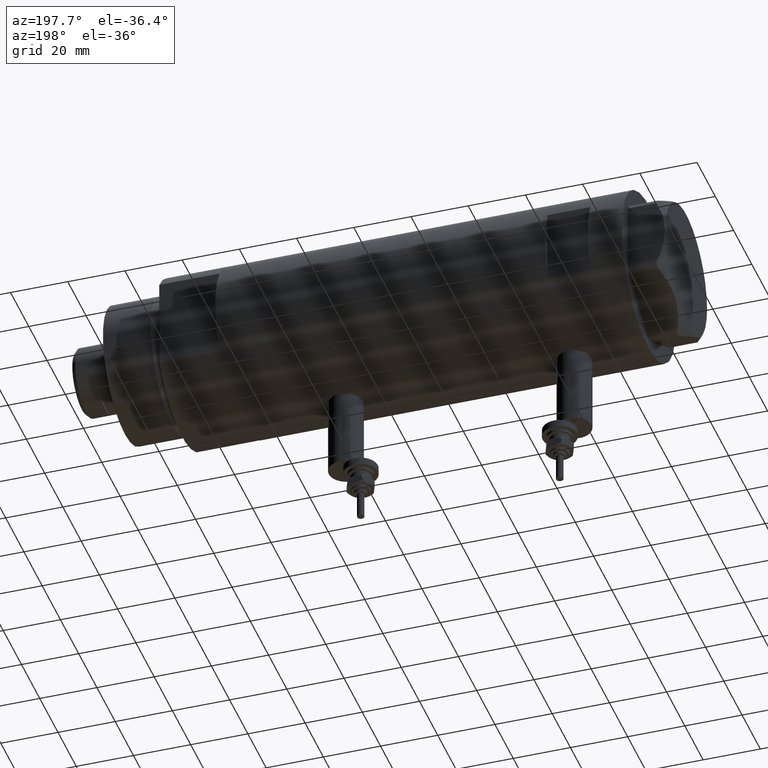
[diagram: clean part render]
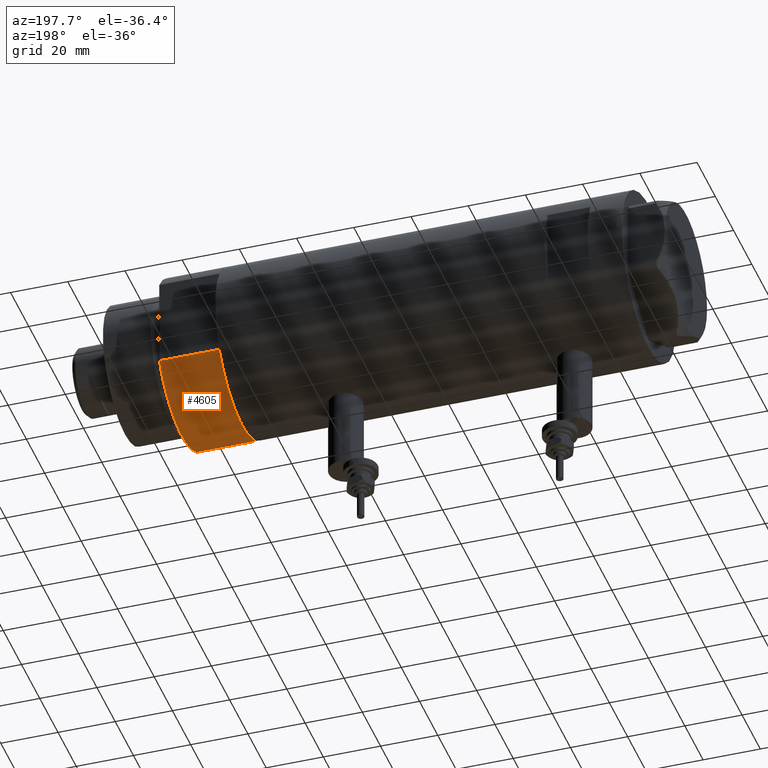
[diagram: same view with one face highlighted and labeled with its STEP entity id]
A machine part, auxiliary view. The second image highlights one B-rep face of the part: STEP entity #4605.
In plain terms, the highlighted cylindrical surface (partial cylindrical patch) has radius 29.5 mm, axis along (-1, -0, 0).
Its self-contained STEP definition (entity closure, byte-faithful):
#181 = DIRECTION ( 'NONE',  ( 1.000000000000000000, 0.000000000000000000, 0.000000000000000000 ) ) ;
#279 = EDGE_CURVE ( 'NONE', #2251, #4995, #2312, .T. ) ;
#390 = VERTEX_POINT ( 'NONE', #5802 ) ;
#462 = EDGE_LOOP ( 'NONE', ( #3285, #2836, #2942, #3974 ) ) ;
#650 = CIRCLE ( 'NONE', #4003, 29.50000000000000355 ) ;
#1031 = DIRECTION ( 'NONE',  ( 0.000000000000000000, 0.000000000000000000, 1.000000000000000000 ) ) ;
#1358 = CARTESIAN_POINT ( 'NONE',  ( 0.000000000000000000, 0.000000000000000000, 21.00000000000000000 ) ) ;
#1697 = VECTOR ( 'NONE', #5829, 1000.000000000000000 ) ;
#2251 = VERTEX_POINT ( 'NONE', #3819 ) ;
#2290 = CYLINDRICAL_SURFACE ( 'NONE', #5239, 29.50000000000000355 ) ;
#2312 = CIRCLE ( 'NONE', #4327, 29.50000000000000355 ) ;
#2342 = FACE_OUTER_BOUND ( 'NONE', #462, .T. ) ;
#2459 = CARTESIAN_POINT ( 'NONE',  ( 15.66045976336583401, 25.00000000000000000, 0.000000000000000000 ) ) ;
#2526 = VECTOR ( 'NONE', #4306, 1000.000000000000000 ) ;
#2704 = DIRECTION ( 'NONE',  ( -1.000000000000000000, 0.000000000000000000, 0.000000000000000000 ) ) ;
#2836 = ORIENTED_EDGE ( 'NONE', *, *, #3665, .F. ) ;
#2897 = CARTESIAN_POINT ( 'NONE',  ( 0.000000000000000000, 0.000000000000000000, 21.00000000000000000 ) ) ;
#2942 = ORIENTED_EDGE ( 'NONE', *, *, #3153, .T. ) ;
#3153 = EDGE_CURVE ( 'NONE', #390, #3593, #650, .T. ) ;
#3175 = DIRECTION ( 'NONE',  ( -0.000000000000000000, -0.000000000000000000, -1.000000000000000000 ) ) ;
#3285 = ORIENTED_EDGE ( 'NONE', *, *, #279, .F. ) ;
#3390 = DIRECTION ( 'NONE',  ( 1.000000000000000000, 0.000000000000000000, 0.000000000000000000 ) ) ;
#3408 = LINE ( 'NONE', #2459, #2526 ) ;
#3593 = VERTEX_POINT ( 'NONE', #5628 ) ;
#3601 = EDGE_CURVE ( 'NONE', #3593, #4995, #3408, .T. ) ;
#3665 = EDGE_CURVE ( 'NONE', #390, #2251, #4933, .T. ) ;
#3819 = CARTESIAN_POINT ( 'NONE',  ( 15.66045976336583045, -25.00000000000000000, 21.00000000000000355 ) ) ;
#3974 = ORIENTED_EDGE ( 'NONE', *, *, #3601, .T. ) ;
#3978 = CARTESIAN_POINT ( 'NONE',  ( 15.66045976336583401, -25.00000000000000000, 0.000000000000000000 ) ) ;
#4003 = AXIS2_PLACEMENT_3D ( 'NONE', #5125, #1031, #3390 ) ;
#4094 = CARTESIAN_POINT ( 'NONE',  ( 15.66045976336583045, 24.99999999999999645, 20.99999999999999645 ) ) ;
#4290 = DIRECTION ( 'NONE',  ( 0.000000000000000000, 0.000000000000000000, 1.000000000000000000 ) ) ;
#4306 = DIRECTION ( 'NONE',  ( -0.000000000000000000, -0.000000000000000000, 1.000000000000000000 ) ) ;
#4327 = AXIS2_PLACEMENT_3D ( 'NONE', #2897, #4290, #181 ) ;
#4605 = ADVANCED_FACE ( 'NONE', ( #2342 ), #2290, .T. ) ;
#4933 = LINE ( 'NONE', #3978, #1697 ) ;
#4995 = VERTEX_POINT ( 'NONE', #4094 ) ;
#5125 = CARTESIAN_POINT ( 'NONE',  ( 0.000000000000000000, 0.000000000000000000, 0.000000000000000000 ) ) ;
#5239 = AXIS2_PLACEMENT_3D ( 'NONE', #1358, #3175, #2704 ) ;
#5628 = CARTESIAN_POINT ( 'NONE',  ( 15.66045976336582690, 25.00000000000000000, 0.000000000000000000 ) ) ;
#5802 = CARTESIAN_POINT ( 'NONE',  ( 15.66045976336583401, -25.00000000000000000, 0.000000000000000000 ) ) ;
#5829 = DIRECTION ( 'NONE',  ( -0.000000000000000000, -0.000000000000000000, 1.000000000000000000 ) ) ;